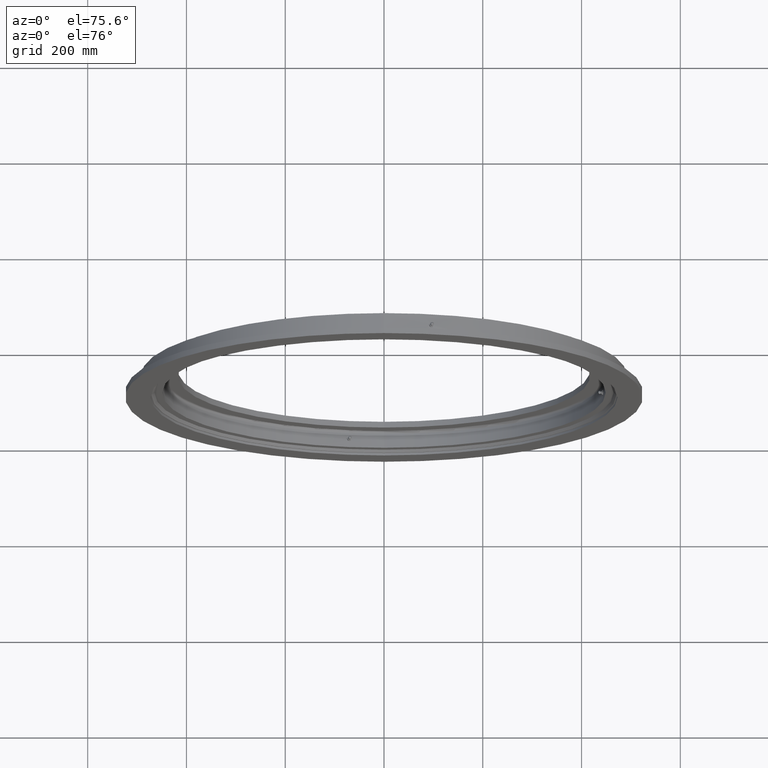
[diagram: clean part render]
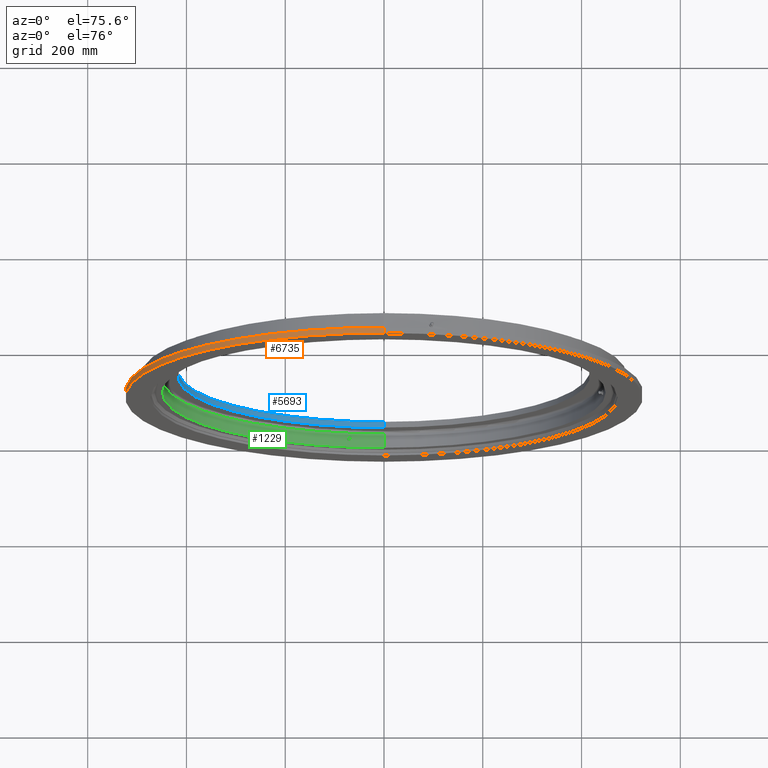
[diagram: same view with three faces highlighted in distinct colors, each labeled with its STEP entity id]
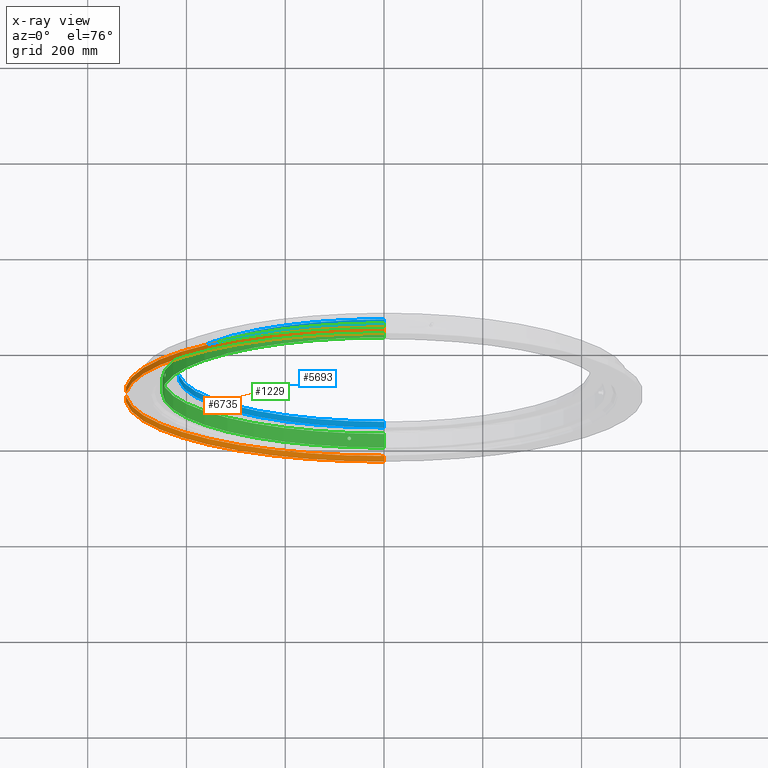
[diagram: x-ray of the same camera — body ghosted, the three highlighted faces saturated]
A machine part, auxiliary view with three faces highlighted in distinct colors.
The next image is the same camera in x-ray (body ghosted, the three faces saturated) — at least one of them is partly hidden behind the body in this view.
Their STEP definitions:

[orange] entity #6735 — the highlighted cylindrical surface (partial cylindrical patch) has radius 524 mm, axis along (-0, 1, -0).
#56 = CYLINDRICAL_SURFACE ( 'NONE', #4656, 524.0000000000000000 ) ;
#191 = CARTESIAN_POINT ( 'NONE',  ( 0.0000000000000000000, -28.00000000000003200, 0.0000000000000000000 ) ) ;
#415 = DIRECTION ( 'NONE',  ( 0.0000000000000000000, 5.958973772439414300E-017, 1.000000000000000000 ) ) ;
#817 = DIRECTION ( 'NONE',  ( 0.0000000000000000000, 0.0000000000000000000, 1.000000000000000000 ) ) ;
#825 = LINE ( 'NONE', #3682, #7239 ) ;
#1623 = CIRCLE ( 'NONE', #2434, 524.0000000000000000 ) ;
#1640 = EDGE_LOOP ( 'NONE', ( #4666, #3578, #2997, #7305 ) ) ;
#1743 = VECTOR ( 'NONE', #6940, 1000.000000000000000 ) ;
#1817 = CARTESIAN_POINT ( 'NONE',  ( 0.0000000000000000000, 22.16364734299516900, 0.0000000000000000000 ) ) ;
#1865 = CARTESIAN_POINT ( 'NONE',  ( 0.0000000000000000000, -16.00000000000003900, 524.0000000000000000 ) ) ;
#2434 = AXIS2_PLACEMENT_3D ( 'NONE', #191, #4526, #817 ) ;
#2470 = CARTESIAN_POINT ( 'NONE',  ( 6.417149227532131900E-014, -16.00000000000009900, -524.0000000000000000 ) ) ;
#2997 = ORIENTED_EDGE ( 'NONE', *, *, #5334, .T. ) ;
#3225 = CARTESIAN_POINT ( 'NONE',  ( 0.0000000000000000000, 22.16364734299516900, 524.0000000000000000 ) ) ;
#3368 = EDGE_CURVE ( 'NONE', #4960, #6785, #1623, .T. ) ;
#3578 = ORIENTED_EDGE ( 'NONE', *, *, #3368, .T. ) ;
#3660 = DIRECTION ( 'NONE',  ( -0.0000000000000000000, 1.000000000000000000, -0.0000000000000000000 ) ) ;
#3682 = CARTESIAN_POINT ( 'NONE',  ( 6.417149227532131900E-014, 22.16364734299516900, -524.0000000000000000 ) ) ;
#4126 = DIRECTION ( 'NONE',  ( -0.0000000000000000000, 1.000000000000000000, -5.904125040278464100E-017 ) ) ;
#4526 = DIRECTION ( 'NONE',  ( -0.0000000000000000000, 1.000000000000000000, -0.0000000000000000000 ) ) ;
#4656 = AXIS2_PLACEMENT_3D ( 'NONE', #1817, #3660, #6155 ) ;
#4666 = ORIENTED_EDGE ( 'NONE', *, *, #7628, .F. ) ;
#4960 = VERTEX_POINT ( 'NONE', #5339 ) ;
#5024 = FACE_OUTER_BOUND ( 'NONE', #1640, .T. ) ;
#5236 = LINE ( 'NONE', #3225, #1743 ) ;
#5334 = EDGE_CURVE ( 'NONE', #6785, #7693, #5236, .T. ) ;
#5339 = CARTESIAN_POINT ( 'NONE',  ( 6.417149227532131900E-014, -28.00000000000003200, -524.0000000000000000 ) ) ;
#5509 = CIRCLE ( 'NONE', #7319, 524.0000000000000000 ) ;
#5642 = VERTEX_POINT ( 'NONE', #2470 ) ;
#6155 = DIRECTION ( 'NONE',  ( 0.0000000000000000000, 0.0000000000000000000, 1.000000000000000000 ) ) ;
#6548 = EDGE_CURVE ( 'NONE', #5642, #7693, #5509, .T. ) ;
#6735 = ADVANCED_FACE ( 'NONE', ( #5024 ), #56, .T. ) ;
#6783 = DIRECTION ( 'NONE',  ( -0.0000000000000000000, 1.000000000000000000, -0.0000000000000000000 ) ) ;
#6785 = VERTEX_POINT ( 'NONE', #7449 ) ;
#6940 = DIRECTION ( 'NONE',  ( -0.0000000000000000000, 1.000000000000000000, -0.0000000000000000000 ) ) ;
#7239 = VECTOR ( 'NONE', #6783, 1000.000000000000000 ) ;
#7305 = ORIENTED_EDGE ( 'NONE', *, *, #6548, .F. ) ;
#7319 = AXIS2_PLACEMENT_3D ( 'NONE', #7824, #4126, #415 ) ;
#7449 = CARTESIAN_POINT ( 'NONE',  ( 0.0000000000000000000, -28.00000000000003200, 524.0000000000000000 ) ) ;
#7628 = EDGE_CURVE ( 'NONE', #4960, #5642, #825, .T. ) ;
#7693 = VERTEX_POINT ( 'NONE', #1865 ) ;
#7824 = CARTESIAN_POINT ( 'NONE',  ( 0.0000000000000000000, -16.00000000000007100, -1.883448000417030800E-015 ) ) ;

[blue] entity #5693 — the highlighted cylindrical surface (partial cylindrical patch) has radius 417 mm, axis along (-0, 1, -0).
#73 = VERTEX_POINT ( 'NONE', #142 ) ;
#142 = CARTESIAN_POINT ( 'NONE',  ( 0.0000000000000000000, 27.99999999999997500, 416.9999999999999400 ) ) ;
#242 = DIRECTION ( 'NONE',  ( -0.0000000000000000000, 1.000000000000000000, -2.727064569436389700E-017 ) ) ;
#618 = CARTESIAN_POINT ( 'NONE',  ( 0.0000000000000000000, 15.99999999999995900, -1.282514094689732600E-015 ) ) ;
#706 = EDGE_CURVE ( 'NONE', #6087, #6499, #2193, .T. ) ;
#1235 = DIRECTION ( 'NONE',  ( 0.0000000000000000000, 4.992010002810956100E-017, 1.000000000000000000 ) ) ;
#1249 = CARTESIAN_POINT ( 'NONE',  ( 0.0000000000000000000, 15.99999999999997900, 416.9999999999999400 ) ) ;
#1516 = CIRCLE ( 'NONE', #1867, 416.9999999999999400 ) ;
#1867 = AXIS2_PLACEMENT_3D ( 'NONE', #618, #4969, #1235 ) ;
#1906 = DIRECTION ( 'NONE',  ( 0.0000000000000000000, 2.496005001405478000E-017, 1.000000000000000000 ) ) ;
#2193 = LINE ( 'NONE', #3920, #6945 ) ;
#2238 = AXIS2_PLACEMENT_3D ( 'NONE', #5628, #4375, #1906 ) ;
#2312 = CYLINDRICAL_SURFACE ( 'NONE', #2238, 416.9999999999999400 ) ;
#2318 = ORIENTED_EDGE ( 'NONE', *, *, #706, .T. ) ;
#2858 = ORIENTED_EDGE ( 'NONE', *, *, #3634, .T. ) ;
#3406 = CARTESIAN_POINT ( 'NONE',  ( 0.0000000000000000000, 31.02910628019325400, 416.9999999999999400 ) ) ;
#3634 = EDGE_CURVE ( 'NONE', #5135, #6087, #1516, .T. ) ;
#3855 = ORIENTED_EDGE ( 'NONE', *, *, #5950, .T. ) ;
#3920 = CARTESIAN_POINT ( 'NONE',  ( 5.106777152444462000E-014, 31.02910628019323300, -416.9999999999999400 ) ) ;
#3962 = CARTESIAN_POINT ( 'NONE',  ( 0.0000000000000000000, 27.99999999999996400, -1.609761843022099500E-015 ) ) ;
#4077 = CARTESIAN_POINT ( 'NONE',  ( 5.106777152444462000E-014, 27.99999999999995400, -416.9999999999999400 ) ) ;
#4375 = DIRECTION ( 'NONE',  ( -0.0000000000000000000, 1.000000000000000000, -2.727064569436389700E-017 ) ) ;
#4439 = DIRECTION ( 'NONE',  ( -0.0000000000000000000, 1.000000000000000000, -2.727064569436389700E-017 ) ) ;
#4585 = DIRECTION ( 'NONE',  ( 0.0000000000000000000, 2.496005001405478000E-017, 1.000000000000000000 ) ) ;
#4633 = VECTOR ( 'NONE', #6528, 1000.000000000000000 ) ;
#4969 = DIRECTION ( 'NONE',  ( 0.0000000000000000000, -1.000000000000000000, 5.298555410421252300E-017 ) ) ;
#5039 = EDGE_LOOP ( 'NONE', ( #2858, #2318, #3855, #7827 ) ) ;
#5135 = VERTEX_POINT ( 'NONE', #1249 ) ;
#5615 = FACE_OUTER_BOUND ( 'NONE', #5039, .T. ) ;
#5628 = CARTESIAN_POINT ( 'NONE',  ( 0.0000000000000000000, 31.02910628019324300, -1.692367527159823000E-015 ) ) ;
#5693 = ADVANCED_FACE ( 'NONE', ( #5615 ), #2312, .F. ) ;
#5950 = EDGE_CURVE ( 'NONE', #6499, #73, #7725, .T. ) ;
#6079 = LINE ( 'NONE', #3406, #4633 ) ;
#6087 = VERTEX_POINT ( 'NONE', #7167 ) ;
#6419 = EDGE_CURVE ( 'NONE', #5135, #73, #6079, .T. ) ;
#6499 = VERTEX_POINT ( 'NONE', #4077 ) ;
#6528 = DIRECTION ( 'NONE',  ( -0.0000000000000000000, 1.000000000000000000, -2.727064569436389700E-017 ) ) ;
#6826 = AXIS2_PLACEMENT_3D ( 'NONE', #3962, #242, #4585 ) ;
#6945 = VECTOR ( 'NONE', #4439, 1000.000000000000000 ) ;
#7167 = CARTESIAN_POINT ( 'NONE',  ( 5.106777152444462000E-014, 15.99999999999993800, -416.9999999999999400 ) ) ;
#7725 = CIRCLE ( 'NONE', #6826, 416.9999999999999400 ) ;
#7827 = ORIENTED_EDGE ( 'NONE', *, *, #6419, .F. ) ;

[green] entity #1229 — the highlighted cylindrical surface (partial cylindrical patch) has radius 449 mm, axis along (-0, 1, -0).
#10 = CARTESIAN_POINT ( 'NONE',  ( -444.0061118733700600, 0.2284303815594159500, 66.78003158948404000 ) ) ;
#47 = CARTESIAN_POINT ( 'NONE',  ( -71.76932485646527500, -3.146596183800495900, -443.2270400915469400 ) ) ;
#182 = CARTESIAN_POINT ( 'NONE',  ( -72.34318924810790500, -2.785761060084784200, -443.1337260051769200 ) ) ;
#210 = CARTESIAN_POINT ( 'NONE',  ( -73.69384997364842600, 6.859621552271867300E-009, -442.9110706180885000 ) ) ;
#241 = LINE ( 'NONE', #3677, #446 ) ;
#263 = ORIENTED_EDGE ( 'NONE', *, *, #4161, .F. ) ;
#284 = CARTESIAN_POINT ( 'NONE',  ( -69.34229552510969100, 3.387954851063145000, -443.6132284233772800 ) ) ;
#321 = CARTESIAN_POINT ( 'NONE',  ( -71.35021080878776400, -3.322150497800873600, -443.2947016107997300 ) ) ;
#446 = VECTOR ( 'NONE', #2350, 1000.000000000000000 ) ;
#507 = CARTESIAN_POINT ( 'NONE',  ( -443.8770898627794800, -2.311675418776558900, 67.63250024155671300 ) ) ;
#521 = CARTESIAN_POINT ( 'NONE',  ( -443.2270400915467100, -3.146596183800494100, 71.76932485646682400 ) ) ;
#568 = EDGE_CURVE ( 'NONE', #4215, #5333, #6518, .T. ) ;
#587 = CARTESIAN_POINT ( 'NONE',  ( -443.0521010762623200, 2.313874331653438300, 72.84134687290659800 ) ) ;
#611 = CARTESIAN_POINT ( 'NONE',  ( -443.7119103734021300, 3.146550990962972500, 68.70797251475909200 ) ) ;
#628 = AXIS2_PLACEMENT_3D ( 'NONE', #8031, #4431, #4362 ) ;
#761 = CARTESIAN_POINT ( 'NONE',  ( -73.69384997364842600, 6.859621552271867300E-009, -442.9110706180885000 ) ) ;
#806 = CARTESIAN_POINT ( 'NONE',  ( -70.68962260659478100, -3.477621302519505100, -443.4005269015699500 ) ) ;
#809 = EDGE_LOOP ( 'NONE', ( #7576, #6954 ) ) ;
#892 = CARTESIAN_POINT ( 'NONE',  ( -70.46577301226109600, 3.499918881379226100, -443.4361588179666600 ) ) ;
#1120 = CARTESIAN_POINT ( 'NONE',  ( -443.8011621610076500, -2.782415919724532800, 68.12902967942254400 ) ) ;
#1151 = CARTESIAN_POINT ( 'NONE',  ( -443.1337260051766400, -2.785761060084797100, 72.34318924810945400 ) ) ;
#1198 = CARTESIAN_POINT ( 'NONE',  ( -73.69384997364842600, 0.2312540918699891600, -442.9110706180886200 ) ) ;
#1206 = CARTESIAN_POINT ( 'NONE',  ( -443.1328307917779100, 2.781636745378362800, 72.34867575383511000 ) ) ;
#1226 = CARTESIAN_POINT ( 'NONE',  ( -443.8009385619456600, 2.783476464982741900, 68.13048438189198900 ) ) ;
#1229 = ADVANCED_FACE ( 'NONE', ( #2925, #7656, #6414 ), #7466, .F. ) ;
#1364 = CARTESIAN_POINT ( 'NONE',  ( 0.0000000000000000000, 10.99999999999998600, 449.0000000000000000 ) ) ;
#1452 = B_SPLINE_CURVE_WITH_KNOTS ( 'NONE', 3,
 ( #1727, #5452, #6703, #2970, #7304, #3604, #7906, #4219, #507, #4846, #1120, #5474, #1755, #6083, #2368, #6728, #3003, #7326, #3624, #7936, #4244, #521, #4871, #1151, #5498, #1778, #6113, #2396, #6751, #3029, #7354, #3645 ),
 .UNSPECIFIED., .F., .F.,
 ( 4, 2, 2, 2, 2, 2, 2, 2, 2, 2, 2, 2, 2, 2, 2, 4 ),
 ( 0.01094264188968591800, 0.01162640263453002300, 0.01231016337937413000, 0.01299392412421823700, 0.01367768486906234200, 0.01436144561390644700, 0.01504520635875055400, 0.01572896710359466100, 0.01641272784843876600, 0.01709648859328287100, 0.01778024933812697600, 0.01846401008297108400, 0.01914777082781518900, 0.01983153157265929400, 0.02051529231750340300, 0.02188281380719159600 ),
 .UNSPECIFIED. ) ;
#1498 = CARTESIAN_POINT ( 'NONE',  ( 5.498664128171616400E-014, 68.08171206226201400, -449.0000000000000000 ) ) ;
#1500 = CARTESIAN_POINT ( 'NONE',  ( -70.69006753436649100, 3.477719938488549500, -443.4004571402849100 ) ) ;
#1502 = LINE ( 'NONE', #1498, #6064 ) ;
#1691 = EDGE_CURVE ( 'NONE', #5333, #4215, #4008, .T. ) ;
#1727 = CARTESIAN_POINT ( 'NONE',  ( -444.0061118733699500, 6.859622088297318500E-009, 66.78003158948404000 ) ) ;
#1755 = CARTESIAN_POINT ( 'NONE',  ( -443.7125545455811000, -3.144459610641634900, 68.70381143668177500 ) ) ;
#1775 = CARTESIAN_POINT ( 'NONE',  ( -73.34399418934057700, 1.552196052407249800, -442.9691481759292100 ) ) ;
#1778 = CARTESIAN_POINT ( 'NONE',  ( -443.0522874939538800, -2.315193848227538700, 72.84021336696849900 ) ) ;
#1799 = CARTESIAN_POINT ( 'NONE',  ( -72.52260623594395400, 2.636754967577448200, -443.1043868741268200 ) ) ;
#1808 = CARTESIAN_POINT ( 'NONE',  ( -442.9147970831914400, 0.4586431589855443100, 73.67146327821384900 ) ) ;
#1821 = AXIS2_PLACEMENT_3D ( 'NONE', #3181, #7504, #3804 ) ;
#1838 = CARTESIAN_POINT ( 'NONE',  ( -443.2269535275992800, 3.146205924059771100, 71.76985456291100700 ) ) ;
#1850 = ORIENTED_EDGE ( 'NONE', *, *, #5721, .F. ) ;
#1864 = CARTESIAN_POINT ( 'NONE',  ( -443.8770653060873900, 2.312152292545291300, 67.63266664732205400 ) ) ;
#1955 = CARTESIAN_POINT ( 'NONE',  ( -73.34337339084265700, -1.553250595111617600, -442.9692508824044800 ) ) ;
#2049 = CARTESIAN_POINT ( 'NONE',  ( -72.84021336696700600, -2.315193848227532900, -443.0522874939542200 ) ) ;
#2110 = CARTESIAN_POINT ( 'NONE',  ( -66.78003158948247600, 6.859622088297318500E-009, -444.0061118733701700 ) ) ;
#2134 = B_SPLINE_CURVE_WITH_KNOTS ( 'NONE', 3,
 ( #2432, #6143, #1808, #3054, #7388, #3681, #7993, #4300, #587, #4930, #1206, #5562, #1838, #6172, #2451, #6810, #3078, #7412, #3704, #8023, #4327, #611, #4962, #1226, #5579, #1864, #6198, #2475, #6832, #3109, #7433, #3727, #10, #4351 ),
 .UNSPECIFIED., .F., .F.,
 ( 4, 2, 2, 2, 2, 2, 2, 2, 2, 2, 2, 2, 2, 2, 2, 2, 4 ),
 ( 1.455887477426133000E-018, 0.0006839151181053712900, 0.001367830236210741300, 0.002051745354316111400, 0.002735660472421480400, 0.003419575590526850300, 0.004103490708632220200, 0.004787405826737589600, 0.005471320944842959100, 0.006155236062948328500, 0.006839151181053698000, 0.007523066299159068300, 0.008206981417264438600, 0.008890896535369808100, 0.009574811653475179300, 0.01025872677158054900, 0.01094264188968591800 ),
 .UNSPECIFIED. ) ;
#2138 = CARTESIAN_POINT ( 'NONE',  ( -66.78003158948247600, 6.859622088297318500E-009, -444.0061118733701700 ) ) ;
#2215 = VERTEX_POINT ( 'NONE', #5081 ) ;
#2219 = CARTESIAN_POINT ( 'NONE',  ( -67.23857628605335900, 1.755852499272645600, -443.9369211088859400 ) ) ;
#2227 = CARTESIAN_POINT ( 'NONE',  ( -66.80266710768765400, 0.4604142493632990000, -444.0027090772497900 ) ) ;
#2241 = CARTESIAN_POINT ( 'NONE',  ( -66.78003158948247600, 6.859622088297318500E-009, -444.0061118733701700 ) ) ;
#2289 = CARTESIAN_POINT ( 'NONE',  ( -68.13048438189045400, 2.783476464982745500, -443.8009385619459400 ) ) ;
#2350 = DIRECTION ( 'NONE',  ( -0.0000000000000000000, 1.000000000000000000, -5.298555410421252300E-017 ) ) ;
#2368 = CARTESIAN_POINT ( 'NONE',  ( -443.6132936805989900, -3.387789075093990700, 69.34187555786323300 ) ) ;
#2391 = CARTESIAN_POINT ( 'NONE',  ( -72.34867575383354700, 2.781636745378363700, -443.1328307917781900 ) ) ;
#2396 = CARTESIAN_POINT ( 'NONE',  ( -442.9870936982200600, -1.757443665597383300, 73.23558679900459400 ) ) ;
#2432 = CARTESIAN_POINT ( 'NONE',  ( -442.9110706180882700, 6.859620161557377000E-009, 73.69384997364998900 ) ) ;
#2451 = CARTESIAN_POINT ( 'NONE',  ( -443.3290951838208100, 3.387877810601669800, 71.13623832985337000 ) ) ;
#2475 = CARTESIAN_POINT ( 'NONE',  ( -443.9369211088857100, 1.755852499272643400, 67.23857628605490800 ) ) ;
#2732 = CARTESIAN_POINT ( 'NONE',  ( 5.498664128171616400E-014, -18.00000000000004300, -449.0000000000000000 ) ) ;
#2741 = DIRECTION ( 'NONE',  ( -0.0000000000000000000, 1.000000000000000000, -5.298555410421252300E-017 ) ) ;
#2744 = ORIENTED_EDGE ( 'NONE', *, *, #7856, .T. ) ;
#2789 = CARTESIAN_POINT ( 'NONE',  ( -66.89039253500763500, -0.9064320090101337700, -443.9895014383961300 ) ) ;
#2822 = CARTESIAN_POINT ( 'NONE',  ( -69.12196326550581200, -3.320201335759005900, -443.6476067349115600 ) ) ;
#2846 = CARTESIAN_POINT ( 'NONE',  ( -67.63266664732049100, 2.312152292545298000, -443.8770653060875600 ) ) ;
#2851 = CARTESIAN_POINT ( 'NONE',  ( -70.46408614706892600, -3.500193027510505300, -443.4364281549080700 ) ) ;
#2883 = EDGE_CURVE ( 'NONE', #2215, #6928, #6514, .T. ) ;
#2899 = CARTESIAN_POINT ( 'NONE',  ( 0.0000000000000000000, 10.99999999999996100, -4.190188333128738200E-015 ) ) ;
#2925 = FACE_BOUND ( 'NONE', #4153, .T. ) ;
#2970 = CARTESIAN_POINT ( 'NONE',  ( -443.9895014383959100, -0.9064320090101339900, 66.89039253500917000 ) ) ;
#2982 = EDGE_CURVE ( 'NONE', #5294, #4154, #2134, .T. ) ;
#3003 = CARTESIAN_POINT ( 'NONE',  ( -443.5086235752668800, -3.499804478094508600, 70.00824284108955500 ) ) ;
#3029 = CARTESIAN_POINT ( 'NONE',  ( -442.9263455920869300, -0.9217470098360435200, 73.60219406449863300 ) ) ;
#3054 = CARTESIAN_POINT ( 'NONE',  ( -442.9293786923479400, 0.9060074311042885000, 73.58374459083030700 ) ) ;
#3078 = CARTESIAN_POINT ( 'NONE',  ( -443.4361588179664300, 3.499918881379224400, 70.46577301226268700 ) ) ;
#3109 = CARTESIAN_POINT ( 'NONE',  ( -443.9795363536941900, 1.127091689459527300, 66.95654573308021900 ) ) ;
#3171 = CARTESIAN_POINT ( 'NONE',  ( -72.98321150421126900, -2.139167544725177500, -443.0287430805383900 ) ) ;
#3181 = CARTESIAN_POINT ( 'NONE',  ( 0.0000000000000000000, -18.00000000000002800, -2.653607264106575800E-015 ) ) ;
#3202 = CARTESIAN_POINT ( 'NONE',  ( -442.9110706180882700, 6.859620161557377000E-009, 73.69384997364998900 ) ) ;
#3263 = CARTESIAN_POINT ( 'NONE',  ( -68.50538600499977800, 3.036912119930013500, -443.7432231131886100 ) ) ;
#3281 = CARTESIAN_POINT ( 'NONE',  ( -73.60219406449708400, -0.9217470098360464000, -442.9263455920869900 ) ) ;
#3296 = CARTESIAN_POINT ( 'NONE',  ( -67.13027292573390500, 1.551319606913455600, -443.9533017945286700 ) ) ;
#3369 = CARTESIAN_POINT ( 'NONE',  ( -71.96784869168742200, -3.039195301824785500, -443.1948385400141900 ) ) ;
#3540 = DIRECTION ( 'NONE',  ( 0.0000000000000000000, 5.408937341575790600E-017, 1.000000000000000000 ) ) ;
#3604 = CARTESIAN_POINT ( 'NONE',  ( -443.9534616956076400, -1.548902403092663000, 67.12921453785166600 ) ) ;
#3624 = CARTESIAN_POINT ( 'NONE',  ( -443.4005269015696600, -3.477621302519506900, 70.68962260659631600 ) ) ;
#3642 = CARTESIAN_POINT ( 'NONE',  ( -73.51734805714400500, 1.128299488411790300, -442.9404105001022500 ) ) ;
#3645 = CARTESIAN_POINT ( 'NONE',  ( -442.9110706180882700, 6.859620161557377000E-009, 73.69384997364998900 ) ) ;
#3677 = CARTESIAN_POINT ( 'NONE',  ( 0.0000000000000000000, 68.08171206226207100, 449.0000000000000000 ) ) ;
#3681 = CARTESIAN_POINT ( 'NONE',  ( -442.9691481759290900, 1.552196052407242900, 73.34399418934216900 ) ) ;
#3704 = CARTESIAN_POINT ( 'NONE',  ( -443.5436777340588600, 3.477323827996216200, 69.78578883303245600 ) ) ;
#3727 = CARTESIAN_POINT ( 'NONE',  ( -444.0027090772495600, 0.4604142493633005500, 66.80266710768920300 ) ) ;
#3797 = CARTESIAN_POINT ( 'NONE',  ( -68.12902967942096700, -2.782415919724531100, -443.8011621610078200 ) ) ;
#3804 = DIRECTION ( 'NONE',  ( 0.0000000000000000000, 3.090821338043308800E-017, 1.000000000000000000 ) ) ;
#3902 = EDGE_LOOP ( 'NONE', ( #1850, #2744, #5969, #263 ) ) ;
#3954 = CIRCLE ( 'NONE', #1821, 449.0000000000000000 ) ;
#3969 = CARTESIAN_POINT ( 'NONE',  ( -67.95573823758425600, 2.638805906143063800, -443.8277192145137100 ) ) ;
#3996 = CARTESIAN_POINT ( 'NONE',  ( -68.70797251475757200, 3.146550990962968100, -443.7119103734024200 ) ) ;
#4008 = B_SPLINE_CURVE_WITH_KNOTS ( 'NONE', 3,
 ( #7985, #1198, #4920, #5525, #3642, #1775, #5495, #6747, #6135, #1799, #2391, #7350, #6109, #7959, #5844, #1500, #892, #5227, #4629, #284, #5782, #3996, #3263, #2289, #3969, #2846, #4068, #2219, #3296, #6505, #6550, #2227, #5955, #2241 ),
 .UNSPECIFIED., .F., .F.,
 ( 4, 2, 2, 2, 2, 2, 2, 2, 2, 2, 2, 2, 2, 2, 2, 2, 4 ),
 ( 1.415336128082121900E-018, 0.0006839151181053719500, 0.001367830236210742600, 0.002051745354316113100, 0.002735660472421483400, 0.003419575590526853800, 0.004103490708632225400, 0.004787405826737595700, 0.005471320944842966000, 0.006155236062948336300, 0.006839151181053706700, 0.007523066299159077800, 0.008206981417264449000, 0.008890896535369818500, 0.009574811653475189700, 0.01025872677158055900, 0.01094264188968593000 ),
 .UNSPECIFIED. ) ;
#4068 = CARTESIAN_POINT ( 'NONE',  ( -67.48919958693917900, 2.134965298535175900, -443.8988893923107100 ) ) ;
#4073 = CARTESIAN_POINT ( 'NONE',  ( -72.52113900090117200, -2.638068542215086200, -443.1046270746703600 ) ) ;
#4153 = EDGE_LOOP ( 'NONE', ( #5731, #7747 ) ) ;
#4154 = VERTEX_POINT ( 'NONE', #5454 ) ;
#4161 = EDGE_CURVE ( 'NONE', #5277, #6928, #241, .T. ) ;
#4215 = VERTEX_POINT ( 'NONE', #2110 ) ;
#4219 = CARTESIAN_POINT ( 'NONE',  ( -443.8988769581101800, -2.135340153753821900, 67.48928373323620600 ) ) ;
#4244 = CARTESIAN_POINT ( 'NONE',  ( -443.2947016107997300, -3.322150497800875300, 71.35021080878934200 ) ) ;
#4300 = CARTESIAN_POINT ( 'NONE',  ( -443.0280774834362800, 2.133731085789165100, 72.98725023234979400 ) ) ;
#4327 = CARTESIAN_POINT ( 'NONE',  ( -443.6468662887870700, 3.321849112991672300, 69.12671644481568500 ) ) ;
#4351 = CARTESIAN_POINT ( 'NONE',  ( -444.0061118733699500, 6.859622088297318500E-009, 66.78003158948404000 ) ) ;
#4362 = DIRECTION ( 'NONE',  ( 0.0000000000000000000, 6.181642676086617600E-017, 1.000000000000000000 ) ) ;
#4410 = CARTESIAN_POINT ( 'NONE',  ( 0.0000000000000000000, -18.00000000000001400, 449.0000000000000000 ) ) ;
#4431 = DIRECTION ( 'NONE',  ( -0.0000000000000000000, 1.000000000000000000, -5.298555410421252300E-017 ) ) ;
#4469 = CARTESIAN_POINT ( 'NONE',  ( -67.23618510848868400, -1.751985551004617200, -443.9372836286153200 ) ) ;
#4552 = CARTESIAN_POINT ( 'NONE',  ( -73.23558679900303000, -1.757443665597385700, -442.9870936982203500 ) ) ;
#4610 = CARTESIAN_POINT ( 'NONE',  ( -69.78384852430841100, -3.477013521793913300, -443.5439826231079200 ) ) ;
#4629 = CARTESIAN_POINT ( 'NONE',  ( -69.78578883303087800, 3.477323827996215300, -443.5436777340590900 ) ) ;
#4846 = CARTESIAN_POINT ( 'NONE',  ( -443.8284045837767700, -2.634578746802585900, 67.95125663733911400 ) ) ;
#4871 = CARTESIAN_POINT ( 'NONE',  ( -443.1948385400139600, -3.039195301824795700, 71.96784869168895700 ) ) ;
#4920 = CARTESIAN_POINT ( 'NONE',  ( -73.67146327821228600, 0.4586431589855448600, -442.9147970831917900 ) ) ;
#4930 = CARTESIAN_POINT ( 'NONE',  ( -443.1043868741264800, 2.636754967577455800, 72.52260623594551700 ) ) ;
#4962 = CARTESIAN_POINT ( 'NONE',  ( -443.7432231131882600, 3.036912119930011300, 68.50538600500134100 ) ) ;
#5077 = CARTESIAN_POINT ( 'NONE',  ( -70.00824284108796300, -3.499804478094507700, -443.5086235752668800 ) ) ;
#5081 = CARTESIAN_POINT ( 'NONE',  ( 5.498664128171616400E-014, 10.99999999999993600, -449.0000000000000000 ) ) ;
#5227 = CARTESIAN_POINT ( 'NONE',  ( -70.01482690879258500, 3.500080692721776500, -443.5075829412393200 ) ) ;
#5277 = VERTEX_POINT ( 'NONE', #4410 ) ;
#5294 = VERTEX_POINT ( 'NONE', #3202 ) ;
#5333 = VERTEX_POINT ( 'NONE', #761 ) ;
#5354 = CARTESIAN_POINT ( 'NONE',  ( -66.80192442924833100, -0.4553525216340287300, -444.0028208171113400 ) ) ;
#5452 = CARTESIAN_POINT ( 'NONE',  ( -444.0061118733698900, -0.2283788065557661500, 66.78003158948404000 ) ) ;
#5454 = CARTESIAN_POINT ( 'NONE',  ( -444.0061118733699500, 6.859622088297318500E-009, 66.78003158948404000 ) ) ;
#5474 = CARTESIAN_POINT ( 'NONE',  ( -443.7432472202097000, -3.036884594010158100, 68.50523167601554100 ) ) ;
#5495 = CARTESIAN_POINT ( 'NONE',  ( -73.23790797416393200, 1.753243387622180700, -442.9867096998702900 ) ) ;
#5498 = CARTESIAN_POINT ( 'NONE',  ( -443.1046270746700200, -2.638068542215092000, 72.52113900090273500 ) ) ;
#5525 = CARTESIAN_POINT ( 'NONE',  ( -73.58374459082874400, 0.9060074311042891600, -442.9293786923480500 ) ) ;
#5560 = EDGE_CURVE ( 'NONE', #4154, #5294, #1452, .T. ) ;
#5562 = CARTESIAN_POINT ( 'NONE',  ( -443.1943303925827400, 3.037490605710231300, 71.97098107389054200 ) ) ;
#5579 = CARTESIAN_POINT ( 'NONE',  ( -443.8277192145134800, 2.638805906143057500, 67.95573823758582000 ) ) ;
#5668 = CARTESIAN_POINT ( 'NONE',  ( -68.70381143668025500, -3.144459610641632300, -443.7125545455814400 ) ) ;
#5720 = CARTESIAN_POINT ( 'NONE',  ( -73.69384997364844000, -0.4624037658570073200, -442.9110706180884400 ) ) ;
#5721 = EDGE_CURVE ( 'NONE', #6381, #5277, #3954, .T. ) ;
#5731 = ORIENTED_EDGE ( 'NONE', *, *, #1691, .T. ) ;
#5782 = CARTESIAN_POINT ( 'NONE',  ( -69.12671644481410700, 3.321849112991670500, -443.6468662887874600 ) ) ;
#5798 = CARTESIAN_POINT ( 'NONE',  ( -67.95125663733753600, -2.634578746802589900, -443.8284045837768300 ) ) ;
#5844 = CARTESIAN_POINT ( 'NONE',  ( -71.13623832985180700, 3.387877810601671100, -443.3290951838211000 ) ) ;
#5955 = CARTESIAN_POINT ( 'NONE',  ( -66.78003158948244800, 0.2284303815594145900, -444.0061118733702300 ) ) ;
#5969 = ORIENTED_EDGE ( 'NONE', *, *, #2883, .T. ) ;
#6064 = VECTOR ( 'NONE', #2741, 1000.000000000000000 ) ;
#6083 = CARTESIAN_POINT ( 'NONE',  ( -443.6476067349111100, -3.320201335759009900, 69.12196326550737500 ) ) ;
#6109 = CARTESIAN_POINT ( 'NONE',  ( -71.76985456290941600, 3.146205924059772400, -443.2269535275994500 ) ) ;
#6113 = CARTESIAN_POINT ( 'NONE',  ( -443.0287430805381600, -2.139167544725174800, 72.98321150421280400 ) ) ;
#6135 = CARTESIAN_POINT ( 'NONE',  ( -72.84134687290503500, 2.313874331653430700, -443.0521010762624900 ) ) ;
#6143 = CARTESIAN_POINT ( 'NONE',  ( -442.9110706180883900, 0.2312540918699881000, 73.69384997365000300 ) ) ;
#6172 = CARTESIAN_POINT ( 'NONE',  ( -443.2940884462124100, 3.320723554439508200, 71.35401534587641900 ) ) ;
#6198 = CARTESIAN_POINT ( 'NONE',  ( -443.8988893923105400, 2.134965298535173700, 67.48919958694074200 ) ) ;
#6381 = VERTEX_POINT ( 'NONE', #2732 ) ;
#6414 = FACE_OUTER_BOUND ( 'NONE', #3902, .T. ) ;
#6458 = CARTESIAN_POINT ( 'NONE',  ( -66.95685877610409900, -1.127688068438361900, -443.9794890068900500 ) ) ;
#6505 = CARTESIAN_POINT ( 'NONE',  ( -66.95654573307867000, 1.127091689459524200, -443.9795363536944700 ) ) ;
#6514 = CIRCLE ( 'NONE', #7494, 449.0000000000000000 ) ;
#6518 = B_SPLINE_CURVE_WITH_KNOTS ( 'NONE', 3,
 ( #2138, #7771, #5354, #2789, #6458, #7188, #4469, #7158, #7657, #5798, #3797, #7498, #5668, #2822, #6610, #4610, #5077, #2851, #806, #7555, #321, #47, #3369, #182, #4073, #2049, #3171, #4552, #1955, #3281, #5720, #210 ),
 .UNSPECIFIED., .F., .F.,
 ( 4, 2, 2, 2, 2, 2, 2, 2, 2, 2, 2, 2, 2, 2, 2, 4 ),
 ( 0.01094264188968593000, 0.01162640263453003500, 0.01231016337937414000, 0.01299392412421824600, 0.01367768486906235100, 0.01436144561390645600, 0.01504520635875055900, 0.01572896710359466400, 0.01641272784843876900, 0.01709648859328287400, 0.01778024933812697900, 0.01846401008297108400, 0.01914777082781518900, 0.01983153157265929400, 0.02051529231750340000, 0.02188281380719162400 ),
 .UNSPECIFIED. ) ;
#6550 = CARTESIAN_POINT ( 'NONE',  ( -66.89112711305476500, 0.9088809855936284000, -443.9893907675978000 ) ) ;
#6610 = CARTESIAN_POINT ( 'NONE',  ( -69.34187555786164100, -3.387789075093992500, -443.6132936805991000 ) ) ;
#6703 = CARTESIAN_POINT ( 'NONE',  ( -444.0028208171110600, -0.4553525216340287800, 66.80192442924988000 ) ) ;
#6728 = CARTESIAN_POINT ( 'NONE',  ( -443.5439826231076400, -3.477013521793912000, 69.78384852430994600 ) ) ;
#6747 = CARTESIAN_POINT ( 'NONE',  ( -72.98725023234824500, 2.133731085789165600, -443.0280774834365000 ) ) ;
#6751 = CARTESIAN_POINT ( 'NONE',  ( -442.9692508824044200, -1.553250595111618000, 73.34337339084422100 ) ) ;
#6810 = CARTESIAN_POINT ( 'NONE',  ( -443.4004571402847400, 3.477719938488548200, 70.69006753436806900 ) ) ;
#6832 = CARTESIAN_POINT ( 'NONE',  ( -443.9533017945284400, 1.551319606913457400, 67.13027292573545400 ) ) ;
#6928 = VERTEX_POINT ( 'NONE', #1364 ) ;
#6954 = ORIENTED_EDGE ( 'NONE', *, *, #5560, .T. ) ;
#7158 = CARTESIAN_POINT ( 'NONE',  ( -67.48928373323462900, -2.135340153753816100, -443.8988769581102400 ) ) ;
#7188 = CARTESIAN_POINT ( 'NONE',  ( -67.12921453785013200, -1.548902403092661000, -443.9534616956080400 ) ) ;
#7235 = DIRECTION ( 'NONE',  ( -0.0000000000000000000, 1.000000000000000000, -5.298555410421252300E-017 ) ) ;
#7304 = CARTESIAN_POINT ( 'NONE',  ( -443.9794890068897100, -1.127688068438366100, 66.95685877610564800 ) ) ;
#7326 = CARTESIAN_POINT ( 'NONE',  ( -443.4364281549079000, -3.500193027510504900, 70.46408614707048900 ) ) ;
#7350 = CARTESIAN_POINT ( 'NONE',  ( -71.97098107388895000, 3.037490605710231800, -443.1943303925829700 ) ) ;
#7354 = CARTESIAN_POINT ( 'NONE',  ( -442.9110706180882700, -0.4624037658570049300, 73.69384997365000300 ) ) ;
#7388 = CARTESIAN_POINT ( 'NONE',  ( -442.9404105001019600, 1.128299488411781800, 73.51734805714555400 ) ) ;
#7412 = CARTESIAN_POINT ( 'NONE',  ( -443.5075829412390900, 3.500080692721777800, 70.01482690879416300 ) ) ;
#7433 = CARTESIAN_POINT ( 'NONE',  ( -443.9893907675975100, 0.9088809855936301800, 66.89112711305631400 ) ) ;
#7466 = CYLINDRICAL_SURFACE ( 'NONE', #628, 449.0000000000000000 ) ;
#7494 = AXIS2_PLACEMENT_3D ( 'NONE', #2899, #7235, #3540 ) ;
#7498 = CARTESIAN_POINT ( 'NONE',  ( -68.50523167601399200, -3.036884594010156800, -443.7432472202099200 ) ) ;
#7504 = DIRECTION ( 'NONE',  ( -0.0000000000000000000, 1.000000000000000000, -2.727064569436389700E-017 ) ) ;
#7555 = CARTESIAN_POINT ( 'NONE',  ( -71.13122759808179300, -3.389072673986091900, -443.3298980006225100 ) ) ;
#7576 = ORIENTED_EDGE ( 'NONE', *, *, #2982, .T. ) ;
#7656 = FACE_BOUND ( 'NONE', #809, .T. ) ;
#7657 = CARTESIAN_POINT ( 'NONE',  ( -67.63250024155516400, -2.311675418776562000, -443.8770898627794800 ) ) ;
#7747 = ORIENTED_EDGE ( 'NONE', *, *, #568, .T. ) ;
#7771 = CARTESIAN_POINT ( 'NONE',  ( -66.78003158948247600, -0.2283788065557672800, -444.0061118733702300 ) ) ;
#7856 = EDGE_CURVE ( 'NONE', #6381, #2215, #1502, .T. ) ;
#7906 = CARTESIAN_POINT ( 'NONE',  ( -443.9372836286151500, -1.751985551004624500, 67.23618510849023300 ) ) ;
#7936 = CARTESIAN_POINT ( 'NONE',  ( -443.3298980006221700, -3.389072673986093200, 71.13122759808334200 ) ) ;
#7959 = CARTESIAN_POINT ( 'NONE',  ( -71.35401534587481400, 3.320723554439509100, -443.2940884462126400 ) ) ;
#7985 = CARTESIAN_POINT ( 'NONE',  ( -73.69384997364842600, 6.859621552271867300E-009, -442.9110706180885000 ) ) ;
#7993 = CARTESIAN_POINT ( 'NONE',  ( -442.9867096998701200, 1.753243387622178500, 73.23790797416549500 ) ) ;
#8023 = CARTESIAN_POINT ( 'NONE',  ( -443.6132284233770000, 3.387954851063146800, 69.34229552511128200 ) ) ;
#8031 = CARTESIAN_POINT ( 'NONE',  ( 0.0000000000000000000, 68.08171206226204200, -7.214694475964806500E-015 ) ) ;